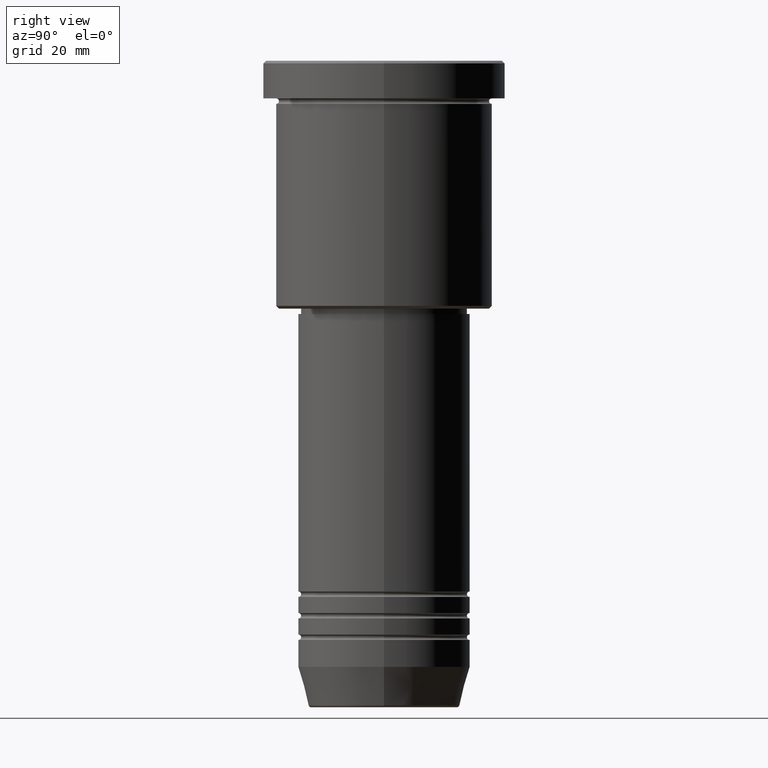
[diagram: clean part render]
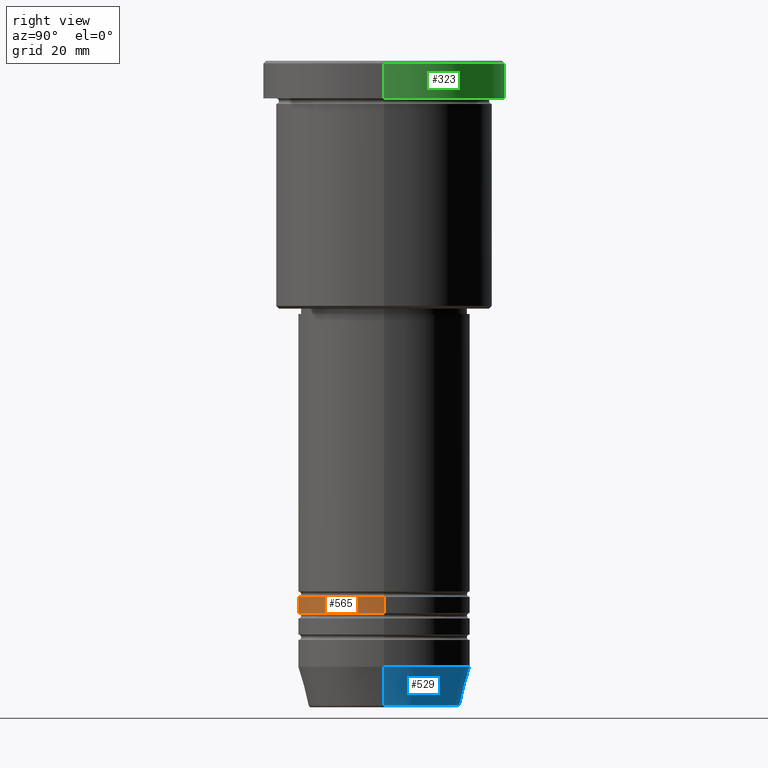
[diagram: same view with three faces highlighted in distinct colors, each labeled with its STEP entity id]
A machine part, right view with three faces highlighted in distinct colors.
Their STEP definitions:

[orange] entity #565 — the highlighted cylindrical surface (partial cylindrical patch) has radius 16 mm, axis along (-0, -0, 1).
#43 = CARTESIAN_POINT ( 'NONE',  ( 0.000000000000000000, 0.000000000000000000, -99.49999999999997158 ) ) ;
#53 = ORIENTED_EDGE ( 'NONE', *, *, #548, .F. ) ;
#60 = DIRECTION ( 'NONE',  ( -0.000000000000000000, -0.000000000000000000, 1.000000000000000000 ) ) ;
#74 = EDGE_CURVE ( 'NONE', #886, #397, #386, .T. ) ;
#91 = AXIS2_PLACEMENT_3D ( 'NONE', #1097, #60, #98 ) ;
#98 = DIRECTION ( 'NONE',  ( 1.000000000000000000, 0.000000000000000000, 0.000000000000000000 ) ) ;
#114 = CIRCLE ( 'NONE', #287, 16.00000000000000000 ) ;
#119 = CYLINDRICAL_SURFACE ( 'NONE', #894, 16.00000000000000000 ) ;
#133 = EDGE_LOOP ( 'NONE', ( #560, #658, #497, #53 ) ) ;
#142 = CARTESIAN_POINT ( 'NONE',  ( 16.00000000000000000, 0.000000000000000000, -99.49999999999997158 ) ) ;
#189 = VECTOR ( 'NONE', #474, 1000.000000000000000 ) ;
#213 = CIRCLE ( 'NONE', #91, 16.00000000000000355 ) ;
#276 = EDGE_CURVE ( 'NONE', #839, #293, #1145, .T. ) ;
#287 = AXIS2_PLACEMENT_3D ( 'NONE', #43, #567, #923 ) ;
#293 = VERTEX_POINT ( 'NONE', #142 ) ;
#386 = LINE ( 'NONE', #744, #189 ) ;
#389 = VECTOR ( 'NONE', #583, 1000.000000000000000 ) ;
#397 = VERTEX_POINT ( 'NONE', #830 ) ;
#449 = CARTESIAN_POINT ( 'NONE',  ( 16.00000000000000355, 0.000000000000000000, -102.4999999999999858 ) ) ;
#461 = CARTESIAN_POINT ( 'NONE',  ( -16.00000000000000355, 1.959434878635765526E-15, -102.4999999999999858 ) ) ;
#474 = DIRECTION ( 'NONE',  ( -0.000000000000000000, -0.000000000000000000, 1.000000000000000000 ) ) ;
#497 = ORIENTED_EDGE ( 'NONE', *, *, #276, .T. ) ;
#548 = EDGE_CURVE ( 'NONE', #397, #293, #114, .T. ) ;
#560 = ORIENTED_EDGE ( 'NONE', *, *, #74, .F. ) ;
#565 = ADVANCED_FACE ( 'NONE', ( #647 ), #119, .T. ) ;
#567 = DIRECTION ( 'NONE',  ( -0.000000000000000000, -0.000000000000000000, 1.000000000000000000 ) ) ;
#583 = DIRECTION ( 'NONE',  ( -0.000000000000000000, -0.000000000000000000, 1.000000000000000000 ) ) ;
#647 = FACE_OUTER_BOUND ( 'NONE', #133, .T. ) ;
#658 = ORIENTED_EDGE ( 'NONE', *, *, #887, .T. ) ;
#744 = CARTESIAN_POINT ( 'NONE',  ( -16.00000000000000000, 1.959434878635765131E-15, 0.000000000000000000 ) ) ;
#758 = CARTESIAN_POINT ( 'NONE',  ( 0.000000000000000000, 0.000000000000000000, 0.000000000000000000 ) ) ;
#830 = CARTESIAN_POINT ( 'NONE',  ( -16.00000000000000000, 1.959434878635765131E-15, -99.49999999999997158 ) ) ;
#839 = VERTEX_POINT ( 'NONE', #449 ) ;
#886 = VERTEX_POINT ( 'NONE', #461 ) ;
#887 = EDGE_CURVE ( 'NONE', #886, #839, #213, .T. ) ;
#894 = AXIS2_PLACEMENT_3D ( 'NONE', #758, #1109, #1131 ) ;
#923 = DIRECTION ( 'NONE',  ( 1.000000000000000000, 0.000000000000000000, 0.000000000000000000 ) ) ;
#928 = CARTESIAN_POINT ( 'NONE',  ( 16.00000000000000000, 0.000000000000000000, 0.000000000000000000 ) ) ;
#1097 = CARTESIAN_POINT ( 'NONE',  ( 0.000000000000000000, 0.000000000000000000, -102.4999999999999858 ) ) ;
#1109 = DIRECTION ( 'NONE',  ( -0.000000000000000000, -0.000000000000000000, 1.000000000000000000 ) ) ;
#1131 = DIRECTION ( 'NONE',  ( 1.000000000000000000, 0.000000000000000000, 0.000000000000000000 ) ) ;
#1145 = LINE ( 'NONE', #928, #389 ) ;

[blue] entity #529 — the highlighted conical surface has half-angle 15 deg.
#8 = FACE_OUTER_BOUND ( 'NONE', #206, .T. ) ;
#41 = EDGE_CURVE ( 'NONE', #976, #264, #220, .T. ) ;
#110 = CONICAL_SURFACE ( 'NONE', #838, 16.00000000000000000, 0.2617993877991500740 ) ;
#169 = DIRECTION ( 'NONE',  ( -0.000000000000000000, -0.000000000000000000, 1.000000000000000000 ) ) ;
#178 = CARTESIAN_POINT ( 'NONE',  ( 0.000000000000000000, 0.000000000000000000, -112.4999999999999858 ) ) ;
#206 = EDGE_LOOP ( 'NONE', ( #1113, #536, #418, #724 ) ) ;
#220 = LINE ( 'NONE', #1001, #857 ) ;
#264 = VERTEX_POINT ( 'NONE', #660 ) ;
#280 = CARTESIAN_POINT ( 'NONE',  ( -14.08968047592162698, 1.842461544110201269E-15, -119.6294095225512564 ) ) ;
#418 = ORIENTED_EDGE ( 'NONE', *, *, #682, .F. ) ;
#470 = VECTOR ( 'NONE', #594, 1000.000000000000000 ) ;
#476 = DIRECTION ( 'NONE',  ( 1.000000000000000000, 0.000000000000000000, 0.000000000000000000 ) ) ;
#526 = CIRCLE ( 'NONE', #1093, 16.00000000000000000 ) ;
#529 = ADVANCED_FACE ( 'NONE', ( #8 ), #110, .T. ) ;
#530 = DIRECTION ( 'NONE',  ( -0.000000000000000000, -0.000000000000000000, 1.000000000000000000 ) ) ;
#536 = ORIENTED_EDGE ( 'NONE', *, *, #776, .T. ) ;
#569 = DIRECTION ( 'NONE',  ( 0.2588190451025213501, 0.000000000000000000, 0.9659258262890680902 ) ) ;
#574 = DIRECTION ( 'NONE',  ( -0.000000000000000000, -0.000000000000000000, 1.000000000000000000 ) ) ;
#594 = DIRECTION ( 'NONE',  ( -0.2588190451025213501, 3.169619151431772337E-17, 0.9659258262890680902 ) ) ;
#613 = CARTESIAN_POINT ( 'NONE',  ( -16.00000000000000000, 1.959434878635765131E-15, -112.4999999999999858 ) ) ;
#641 = VERTEX_POINT ( 'NONE', #613 ) ;
#660 = CARTESIAN_POINT ( 'NONE',  ( 16.00000000000000000, 0.000000000000000000, -112.4999999999999858 ) ) ;
#673 = CIRCLE ( 'NONE', #1139, 14.08968047592162698 ) ;
#682 = EDGE_CURVE ( 'NONE', #264, #641, #526, .T. ) ;
#724 = ORIENTED_EDGE ( 'NONE', *, *, #41, .F. ) ;
#776 = EDGE_CURVE ( 'NONE', #806, #641, #849, .T. ) ;
#785 = DIRECTION ( 'NONE',  ( 1.000000000000000000, 0.000000000000000000, 0.000000000000000000 ) ) ;
#803 = EDGE_CURVE ( 'NONE', #976, #806, #673, .T. ) ;
#806 = VERTEX_POINT ( 'NONE', #280 ) ;
#838 = AXIS2_PLACEMENT_3D ( 'NONE', #1098, #574, #476 ) ;
#849 = LINE ( 'NONE', #941, #470 ) ;
#857 = VECTOR ( 'NONE', #569, 1000.000000000000000 ) ;
#884 = DIRECTION ( 'NONE',  ( 1.000000000000000000, 0.000000000000000000, 0.000000000000000000 ) ) ;
#941 = CARTESIAN_POINT ( 'NONE',  ( -16.00000000000000000, 1.959434878635765131E-15, -112.4999999999999858 ) ) ;
#976 = VERTEX_POINT ( 'NONE', #1147 ) ;
#1001 = CARTESIAN_POINT ( 'NONE',  ( 16.00000000000000000, 0.000000000000000000, -112.4999999999999858 ) ) ;
#1077 = CARTESIAN_POINT ( 'NONE',  ( 0.000000000000000000, 0.000000000000000000, -119.6294095225512564 ) ) ;
#1093 = AXIS2_PLACEMENT_3D ( 'NONE', #178, #530, #884 ) ;
#1098 = CARTESIAN_POINT ( 'NONE',  ( 0.000000000000000000, 0.000000000000000000, -112.4999999999999858 ) ) ;
#1113 = ORIENTED_EDGE ( 'NONE', *, *, #803, .T. ) ;
#1139 = AXIS2_PLACEMENT_3D ( 'NONE', #1077, #169, #785 ) ;
#1147 = CARTESIAN_POINT ( 'NONE',  ( 14.08968047592162698, 0.000000000000000000, -119.6294095225512564 ) ) ;

[green] entity #323 — the highlighted cylindrical surface (partial cylindrical patch) has radius 22.5 mm, axis along (-0, -0, 1).
#56 = CARTESIAN_POINT ( 'NONE',  ( 0.000000000000000000, 0.000000000000000000, 0.000000000000000000 ) ) ;
#123 = ORIENTED_EDGE ( 'NONE', *, *, #1152, .T. ) ;
#184 = VERTEX_POINT ( 'NONE', #937 ) ;
#232 = AXIS2_PLACEMENT_3D ( 'NONE', #954, #672, #1040 ) ;
#250 = CARTESIAN_POINT ( 'NONE',  ( -22.50000000000000000, 2.755455298081544778E-15, 0.000000000000000000 ) ) ;
#251 = AXIS2_PLACEMENT_3D ( 'NONE', #56, #333, #278 ) ;
#263 = EDGE_CURVE ( 'NONE', #903, #521, #438, .T. ) ;
#278 = DIRECTION ( 'NONE',  ( 1.000000000000000000, 0.000000000000000000, 0.000000000000000000 ) ) ;
#323 = ADVANCED_FACE ( 'NONE', ( #958 ), #864, .T. ) ;
#332 = LINE ( 'NONE', #250, #1036 ) ;
#333 = DIRECTION ( 'NONE',  ( -0.000000000000000000, -0.000000000000000000, 1.000000000000000000 ) ) ;
#340 = ORIENTED_EDGE ( 'NONE', *, *, #791, .T. ) ;
#349 = DIRECTION ( 'NONE',  ( 1.000000000000000000, 0.000000000000000000, 0.000000000000000000 ) ) ;
#392 = DIRECTION ( 'NONE',  ( -0.000000000000000000, -0.000000000000000000, 1.000000000000000000 ) ) ;
#427 = EDGE_LOOP ( 'NONE', ( #478, #340, #123, #551 ) ) ;
#438 = LINE ( 'NONE', #588, #601 ) ;
#478 = ORIENTED_EDGE ( 'NONE', *, *, #1026, .T. ) ;
#521 = VERTEX_POINT ( 'NONE', #817 ) ;
#551 = ORIENTED_EDGE ( 'NONE', *, *, #263, .F. ) ;
#578 = CIRCLE ( 'NONE', #740, 22.50000000000000000 ) ;
#582 = CIRCLE ( 'NONE', #232, 22.50000000000000000 ) ;
#588 = CARTESIAN_POINT ( 'NONE',  ( 22.50000000000000000, 0.000000000000000000, 0.000000000000000000 ) ) ;
#601 = VECTOR ( 'NONE', #392, 1000.000000000000000 ) ;
#618 = DIRECTION ( 'NONE',  ( 0.000000000000000000, 0.000000000000000000, -1.000000000000000000 ) ) ;
#648 = VERTEX_POINT ( 'NONE', #854 ) ;
#672 = DIRECTION ( 'NONE',  ( -0.000000000000000000, -0.000000000000000000, 1.000000000000000000 ) ) ;
#740 = AXIS2_PLACEMENT_3D ( 'NONE', #961, #618, #349 ) ;
#791 = EDGE_CURVE ( 'NONE', #184, #648, #332, .T. ) ;
#817 = CARTESIAN_POINT ( 'NONE',  ( 22.50000000000000000, 0.000000000000000000, -0.4999999999999796274 ) ) ;
#854 = CARTESIAN_POINT ( 'NONE',  ( -22.50000000000000000, 2.755455298081544778E-15, -0.4999999999999796274 ) ) ;
#864 = CYLINDRICAL_SURFACE ( 'NONE', #251, 22.50000000000000000 ) ;
#898 = CARTESIAN_POINT ( 'NONE',  ( 22.50000000000000000, 0.000000000000000000, -6.999999999999995559 ) ) ;
#903 = VERTEX_POINT ( 'NONE', #898 ) ;
#937 = CARTESIAN_POINT ( 'NONE',  ( -22.50000000000000000, 2.755455298081544778E-15, -6.999999999999995559 ) ) ;
#954 = CARTESIAN_POINT ( 'NONE',  ( 0.000000000000000000, 0.000000000000000000, -6.999999999999995559 ) ) ;
#956 = DIRECTION ( 'NONE',  ( -0.000000000000000000, -0.000000000000000000, 1.000000000000000000 ) ) ;
#958 = FACE_OUTER_BOUND ( 'NONE', #427, .T. ) ;
#961 = CARTESIAN_POINT ( 'NONE',  ( 0.000000000000000000, 0.000000000000000000, -0.4999999999999796274 ) ) ;
#1026 = EDGE_CURVE ( 'NONE', #903, #184, #582, .T. ) ;
#1036 = VECTOR ( 'NONE', #956, 1000.000000000000000 ) ;
#1040 = DIRECTION ( 'NONE',  ( 1.000000000000000000, 0.000000000000000000, 0.000000000000000000 ) ) ;
#1152 = EDGE_CURVE ( 'NONE', #648, #521, #578, .T. ) ;